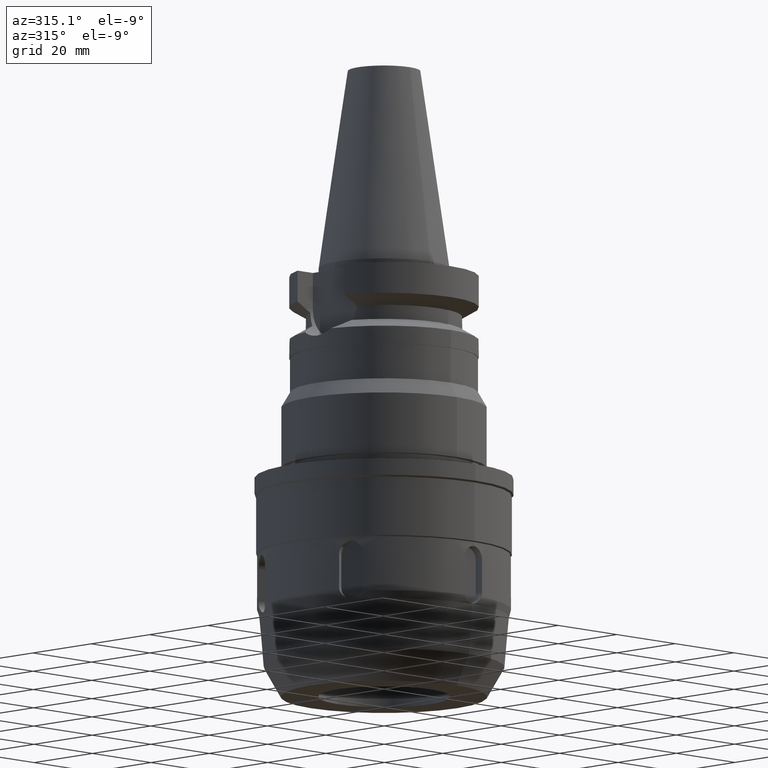
[diagram: clean part render]
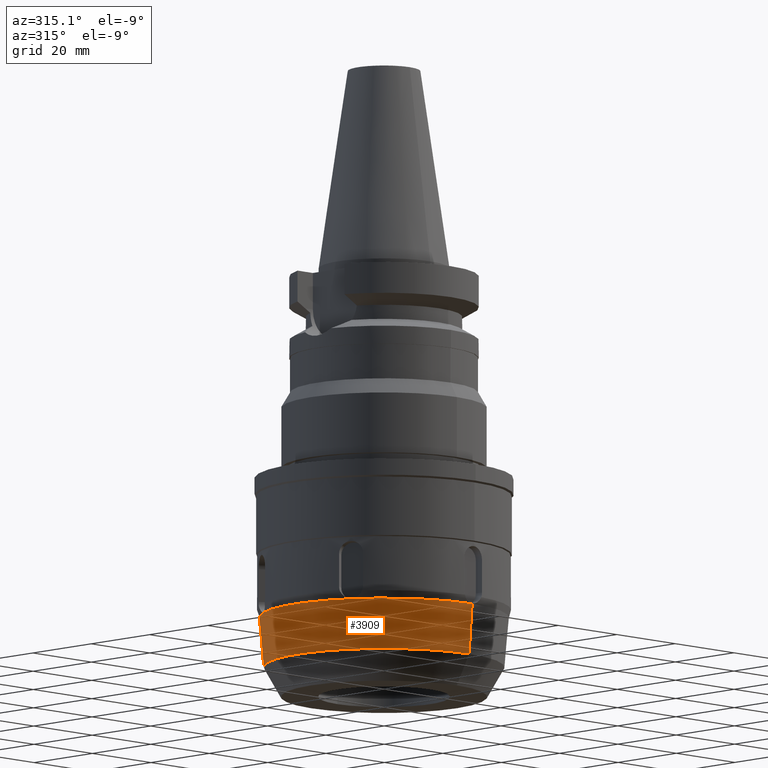
[diagram: same view with one face highlighted and labeled with its STEP entity id]
A machine part, auxiliary view. The second image highlights one B-rep face of the part: STEP entity #3909.
In plain terms, the highlighted conical surface has half-angle 5 deg.
Its self-contained STEP definition (entity closure, byte-faithful):
#1187=CARTESIAN_POINT('',(0.E0,0.E0,-8.556719098244E1));
#1188=DIRECTION('',(0.E0,0.E0,-1.E0));
#1189=DIRECTION('',(0.E0,-1.E0,0.E0));
#1190=AXIS2_PLACEMENT_3D('',#1187,#1188,#1189);
#1859=DIRECTION('',(0.E0,-8.715574274778E-2,-9.961946980917E-1));
#1860=VECTOR('',#1859,1.223336064818E1);
#1861=CARTESIAN_POINT('',(0.E0,3.024968768414E1,-8.556719098244E1));
#1862=LINE('',#1861,#1860);
#1874=DIRECTION('',(0.E0,8.715574274778E-2,-9.961946980917E-1));
#1875=VECTOR('',#1874,1.223336064818E1);
#1876=CARTESIAN_POINT('',(-6.415553787813E-14,-3.024968768414E1,
-8.556719098244E1));
#1877=LINE('',#1876,#1875);
#1881=CARTESIAN_POINT('',(0.E0,0.E0,-9.7754E1));
#1882=DIRECTION('',(0.E0,0.E0,-1.E0));
#1883=DIRECTION('',(0.E0,-1.E0,0.E0));
#1884=AXIS2_PLACEMENT_3D('',#1881,#1882,#1883);
#2357=CARTESIAN_POINT('',(0.E0,2.918348005054E1,-9.7754E1));
#2358=VERTEX_POINT('',#2357);
#2359=CARTESIAN_POINT('',(0.E0,-2.918348005054E1,-9.7754E1));
#2360=VERTEX_POINT('',#2359);
#2361=CARTESIAN_POINT('',(0.E0,3.024968768414E1,-8.556719098244E1));
#2362=VERTEX_POINT('',#2361);
#2363=CARTESIAN_POINT('',(-1.246065574365E-13,-3.024968768414E1,
-8.556719098244E1));
#2364=VERTEX_POINT('',#2363);
#3897=CARTESIAN_POINT('',(0.E0,0.E0,-9.166059549122E1));
#3898=DIRECTION('',(0.E0,0.E0,1.E0));
#3899=DIRECTION('',(0.E0,1.E0,0.E0));
#3900=AXIS2_PLACEMENT_3D('',#3897,#3898,#3899);
#3901=CONICAL_SURFACE('',#3900,2.971658386734E1,5.E0);
#3902=ORIENTED_EDGE('',*,*,#3887,.F.);
#3903=ORIENTED_EDGE('',*,*,#3409,.F.);
#3904=ORIENTED_EDGE('',*,*,#3891,.T.);
#3906=ORIENTED_EDGE('',*,*,#3905,.T.);
#3907=EDGE_LOOP('',(#3902,#3903,#3904,#3906));
#3908=FACE_OUTER_BOUND('',#3907,.F.);
#1191=CIRCLE('',#1190,3.024968768414E1);
#1885=CIRCLE('',#1884,2.918348005054E1);
#3409=EDGE_CURVE('',#2364,#2362,#1191,.T.);
#3887=EDGE_CURVE('',#2362,#2358,#1862,.T.);
#3891=EDGE_CURVE('',#2364,#2360,#1877,.T.);
#3905=EDGE_CURVE('',#2360,#2358,#1885,.T.);
#3909=ADVANCED_FACE('',(#3908),#3901,.T.);